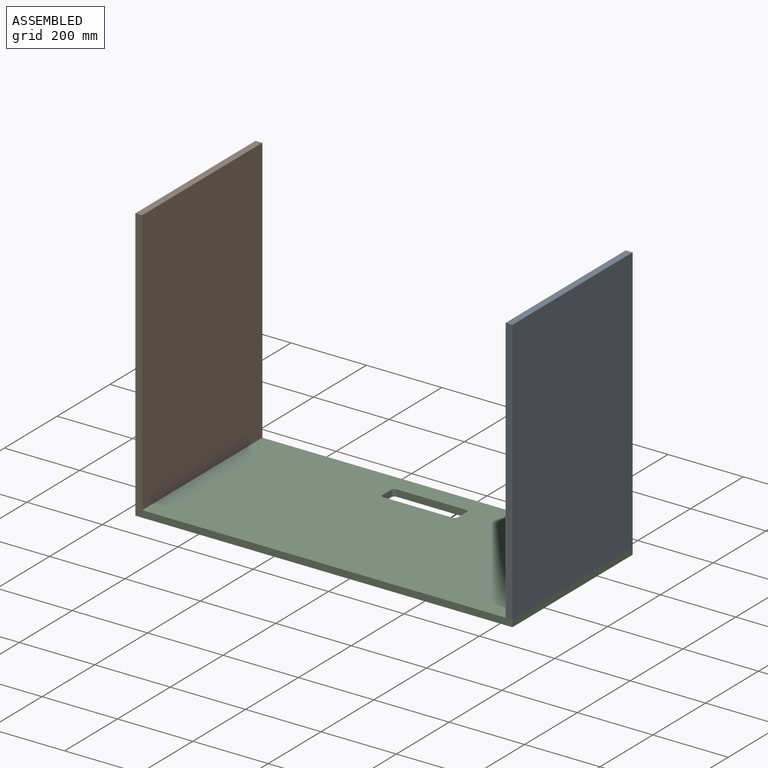
[diagram: assembled view]
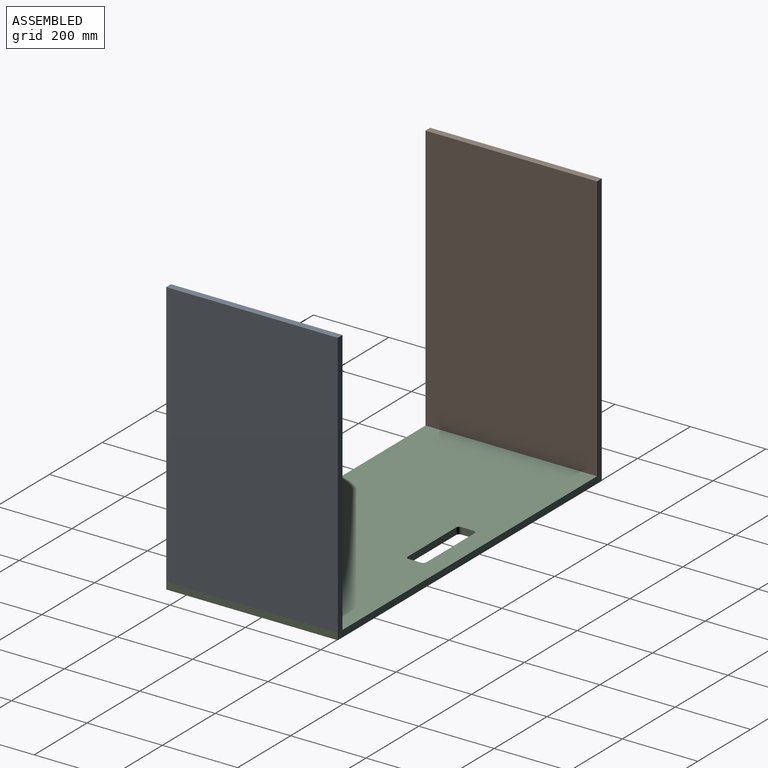
[diagram: assembled view, second angle]
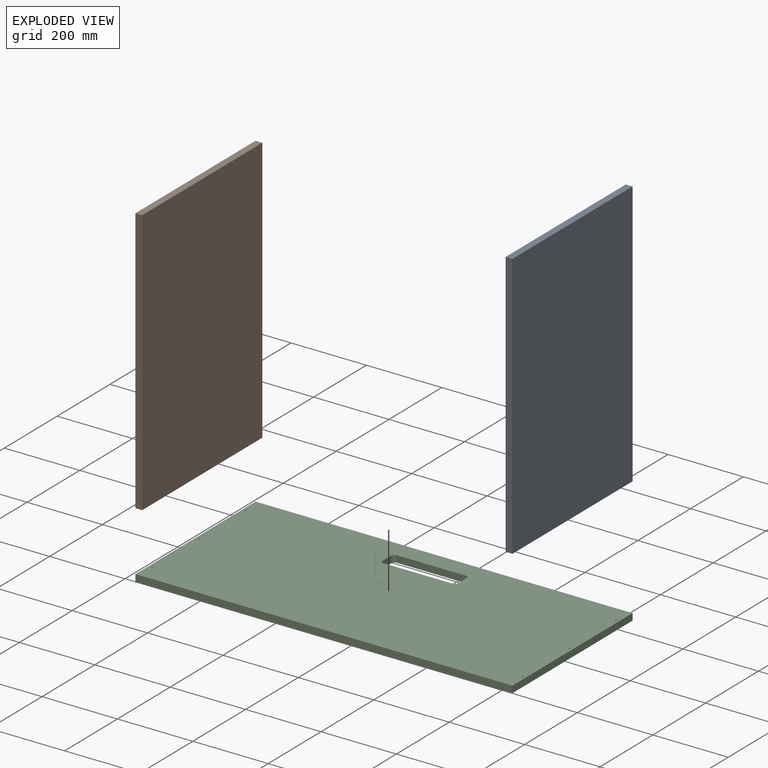
[diagram: exploded view]
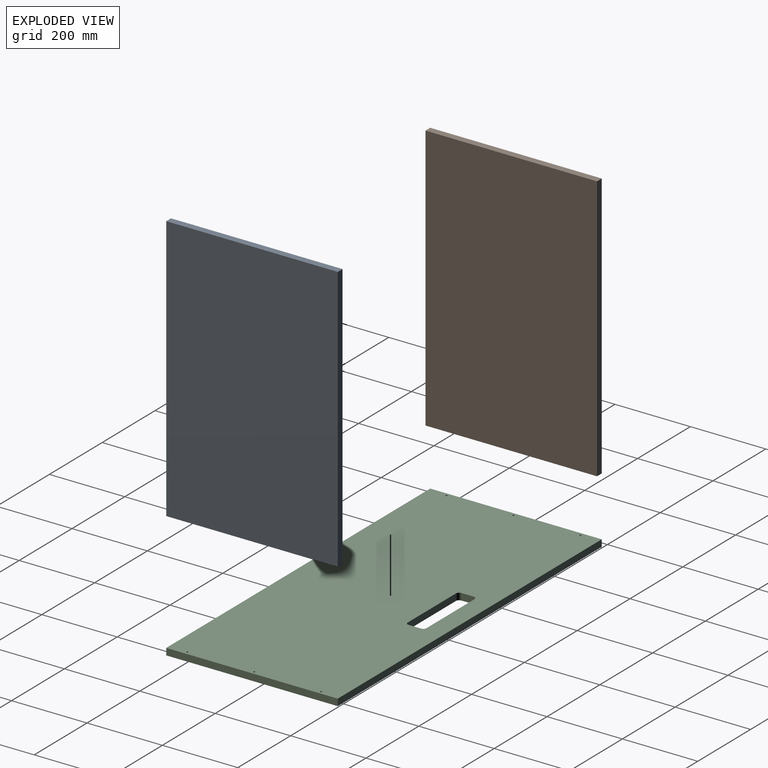
[diagram: exploded view, second angle]
ASSEMBLY  parts=3 mates=2
PART A: 6 faces, bbox 18x455x707 mm
  f0: plane 455x18mm, normal (0,0,-1), area 8190mm2, adj f1,f3,f4,f5
  f1: plane 707x18mm, normal (0,1,0), area 12726mm2, adj f0,f2,f4,f5
  f2: plane 455x18mm, normal (0,0,1), area 8190mm2, adj f1,f3,f4,f5
  f3: plane 707x18mm, normal (0,-1,0), area 12726mm2, adj f0,f2,f4,f5
  f4: plane 707x455mm, normal (1,0,0), area 321685mm2, adj f0,f1,f2,f3
  f5: plane 707x455mm, normal (-1,0,0), area 321685mm2, adj f0,f1,f2,f3
PART B: same geometry as A
PART C: 26 faces, bbox 1000x455x18 mm
  f0: plane 1000x455mm, normal (0,0,-1), area 444844.1mm2, adj f2,f3,f4,f5,f6,f7,f8,f9
  f1: plane 1000x455mm, normal (0,0,1), area 444953.4mm2, adj f2,f3,f4,f5,f6,f7,f8,f9
  f2: plane 1000x18mm, normal (0,-1,0), area 18000mm2, adj f0,f1,f3,f5
  f3: plane 455x18mm, normal (1,0,0), area 8190mm2, adj f0,f1,f2,f4
  f4: plane 1000x18mm, normal (0,1,0), area 18000mm2, adj f0,f1,f3,f5
  f5: plane 455x18mm, normal (-1,0,0), area 8190mm2, adj f0,f1,f2,f4
  f6: plane 33x18mm, normal (1,0,0), area 594mm2, adj f0,f1,f10,f13
  f7: plane 183x18mm, normal (0,1,0), area 3294mm2, adj f0,f1,f10,f11
  f8: plane 33x18mm, normal (-1,0,0), area 594mm2, adj f0,f1,f11,f12
  f9: plane 183x18mm, normal (0,-1,0), area 3294mm2, adj f0,f1,f12,f13
  f10: cylinder r=8.5mm len=18mm, axis (0,0,-1), area 240.3mm2, adj f0,f1,f6,f7
  f11: cylinder r=8.5mm len=18mm, axis (0,0,1), area 240.3mm2, adj f0,f1,f7,f8
  f12: cylinder r=8.5mm len=18mm, axis (0,0,-1), area 240.3mm2, adj f0,f1,f8,f9
  f13: cylinder r=8.5mm len=18mm, axis (0,0,1), area 240.3mm2, adj f0,f1,f6,f9
  f14: cylinder r=2.4mm len=17mm, axis (0,0,-1), area 256.4mm2, adj f1,f23
  f15: cylinder r=2.4mm len=17mm, axis (0,0,-1), area 256.4mm2, adj f1,f22
  f16: cylinder r=2.4mm len=17mm, axis (0,0,-1), area 256.4mm2, adj f1,f21
  f17: cylinder r=2.4mm len=17mm, axis (0,0,-1), area 256.4mm2, adj f1,f20
  f18: cylinder r=2.4mm len=17mm, axis (0,0,-1), area 256.4mm2, adj f1,f25
  f19: cylinder r=2.4mm len=17mm, axis (0,0,-1), area 256.4mm2, adj f1,f24
  f20: cone r=3.4mm half-angle=45deg, axis (0,0,-1), area 25.8mm2, adj f0,f17
  f21: cone r=3.4mm half-angle=45deg, axis (0,0,-1), area 25.8mm2, adj f0,f16
  f22: cone r=3.4mm half-angle=45deg, axis (0,0,-1), area 25.8mm2, adj f0,f15
  f23: cone r=2.4mm half-angle=45deg, axis (0,0,-1), area 25.8mm2, adj f0,f14
  f24: cone r=2.4mm half-angle=45deg, axis (0,0,-1), area 25.8mm2, adj f0,f19
  f25: cone r=2.4mm half-angle=45deg, axis (0,0,-1), area 25.8mm2, adj f0,f18
PLACE A t=(-157.56,-6.26,456.51)mm
PLACE B t=(-1139.56,-6.26,456.51)mm
PLACE C t=(-648.56,-6.26,94.01)mm fixed
MATE fastened A.f0 <-> C.f1  axis (0,0,-1) through (-148.56,-233.76,103.01)mm
MATE fastened B.f0 <-> C.f1  axis (0,0,1) through (-1148.56,-233.76,103.01)mm
